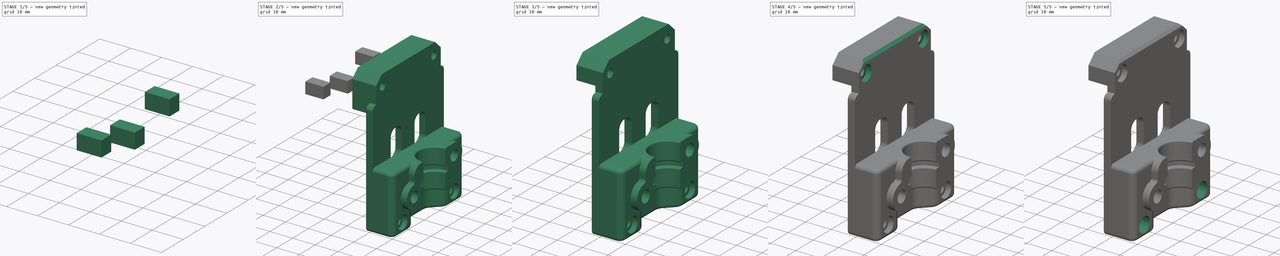
[diagram: build sequence overview — one tinted view per stage of 5, left to right]
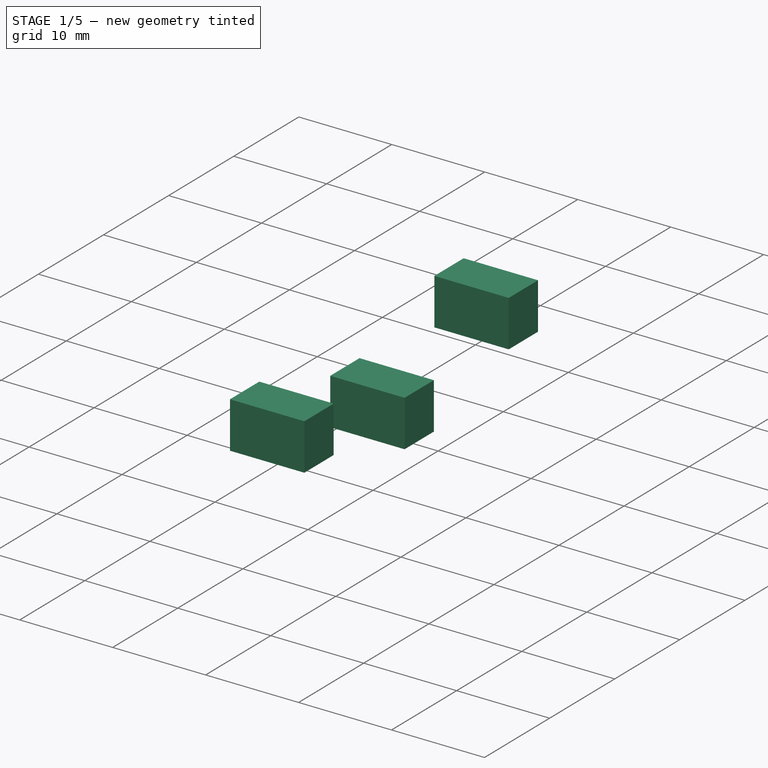
[diagram: stage 1 of 5 — iso view after this stage's code; geometry added in this stage tinted green]
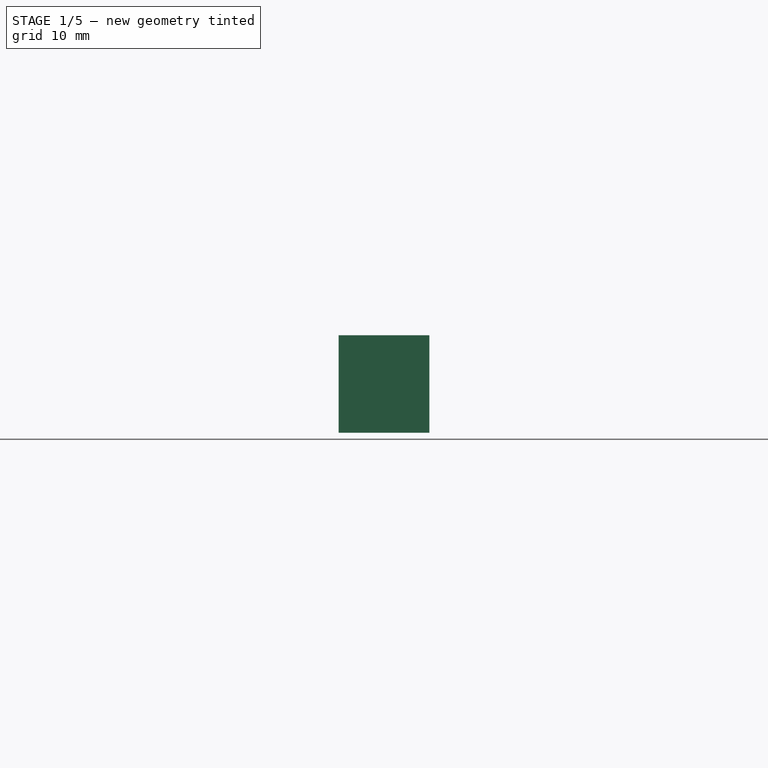
[diagram: stage 1 of 5 — front view after this stage's code; geometry added in this stage tinted green]
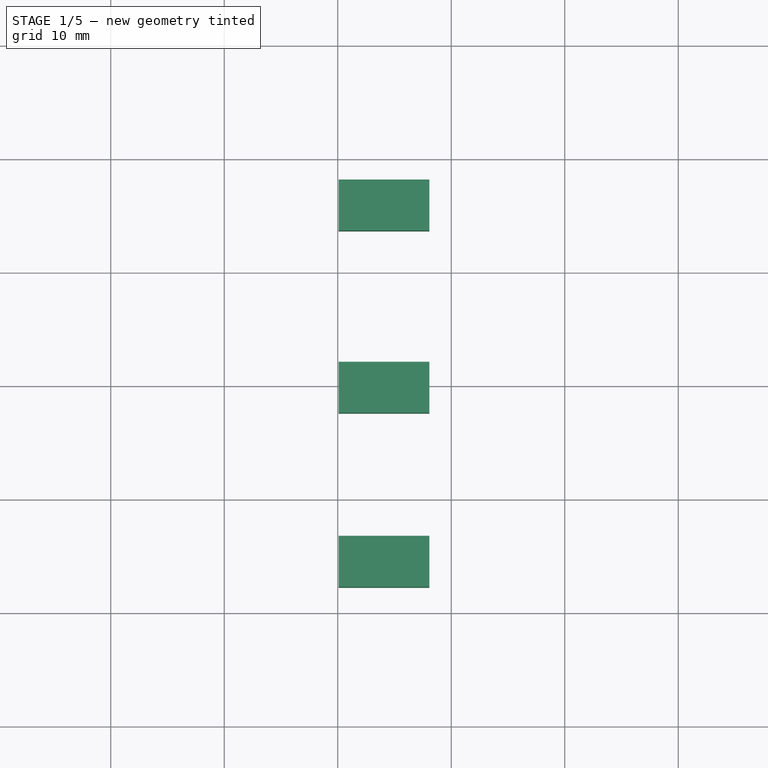
[diagram: stage 1 of 5 — top view after this stage's code; geometry added in this stage tinted green]
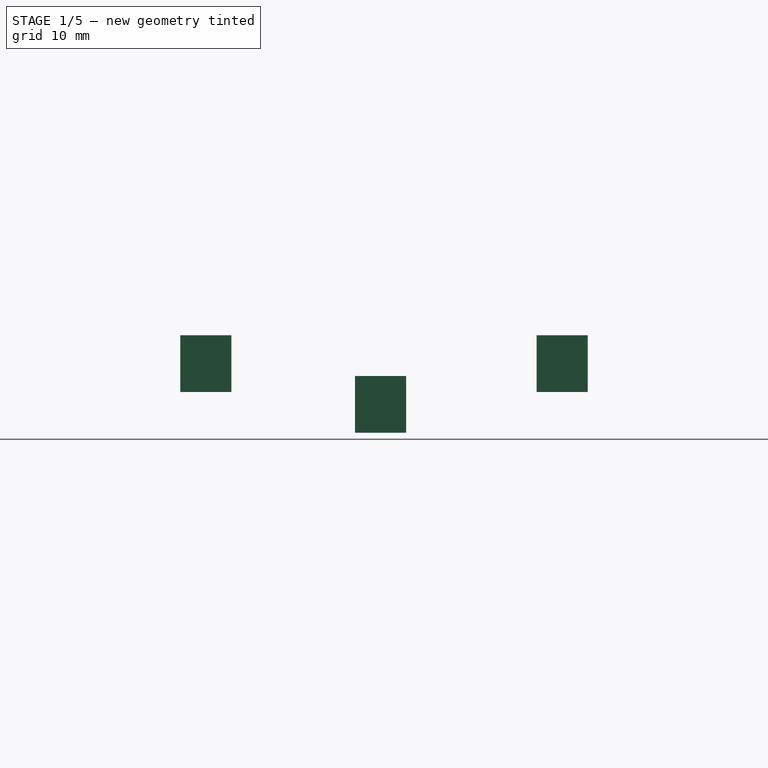
[diagram: stage 1 of 5 — right view after this stage's code; geometry added in this stage tinted green]
FCSTD DOCUMENT  (FreeCAD 1.0R39109 (Git))
Label: dragknife_sc_sbbackplate
License: All rights reserved
LicenseURL: https://en.wikipedia.org/wiki/All_rights_reserved
objects: Part::Feature×8, Sketcher::SketchObject×6, App::Part×3, PartDesign::Pocket×3, Part::Box×3, Part::FeaturePython×3, PartDesign::FeatureBase×2, PartDesign::Pad×2, PartDesign::Body×2, Part::Cut×2, Part::MultiFuse×1, Part::Plane×1, PartDesign::Hole×1, PartDesign::Chamfer×1, App::DocumentObjectGroup×1
note: 57 computed .brp shape members not serialized (recipe doc carries the construction recipe); baked Part::Feature solids carry a one-line shape summary decoded from their .brp

FEATURE [Part::Box] Box  label="Cube"
  AttacherType = Attacher::AttachEngine3D
  Height = 5
  Length = 8
  Placement = pos=(-29.926,-17.8,45) rot=(0,0,1;0rad)
  Width = 4.5
FEATURE [Part::Box] Box001  label="Cube001"
  AttacherType = Attacher::AttachEngine3D
  Height = 5
  Length = 8
  Placement = pos=(-29.926,13.6,45) rot=(0,0,1;0rad)
  Width = 4.5
FEATURE [Part::Box] Box002  label="Cube002"
  AttacherType = Attacher::AttachEngine3D
  Height = 5
  Length = 8
  Placement = pos=(-29.926,-2.4,41.4) rot=(0,0,1;0rad)
  Width = 4.5
FEATURE [Part::MultiFuse] Fusion
  Shapes = -> [Box,Box001,Box002]
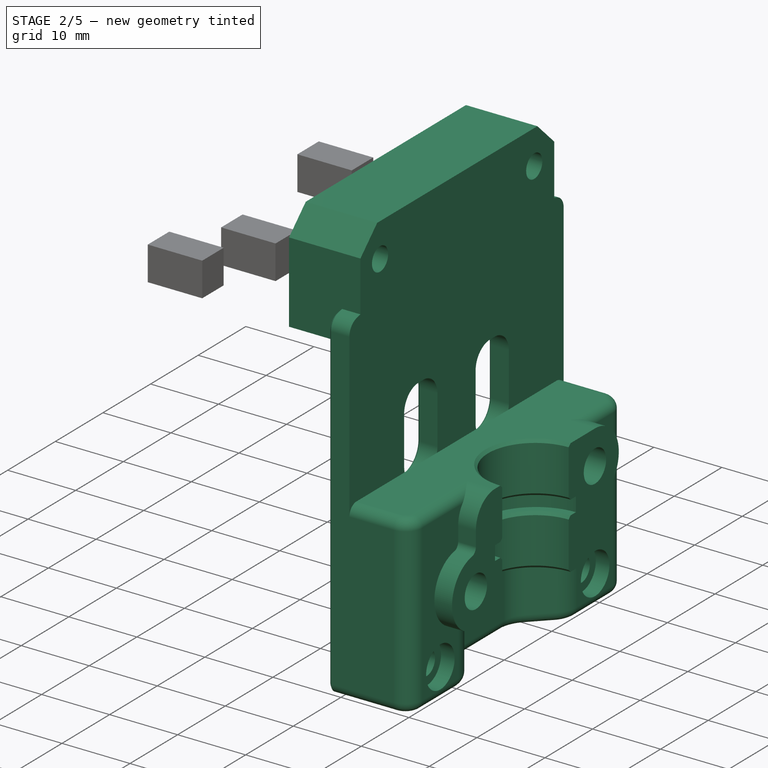
[diagram: stage 2 of 5 — iso view after this stage's code; geometry added in this stage tinted green]
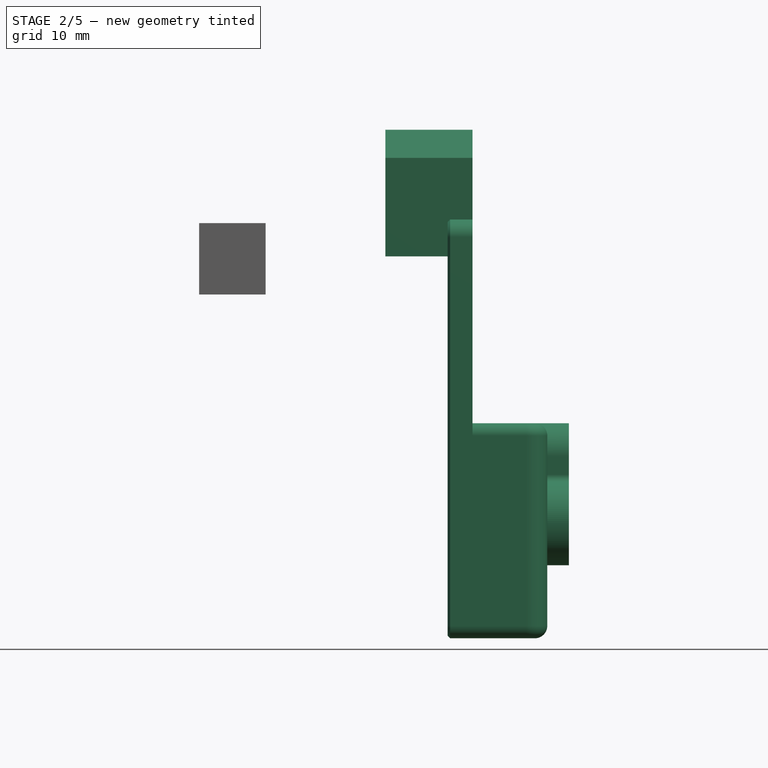
[diagram: stage 2 of 5 — front view after this stage's code; geometry added in this stage tinted green]
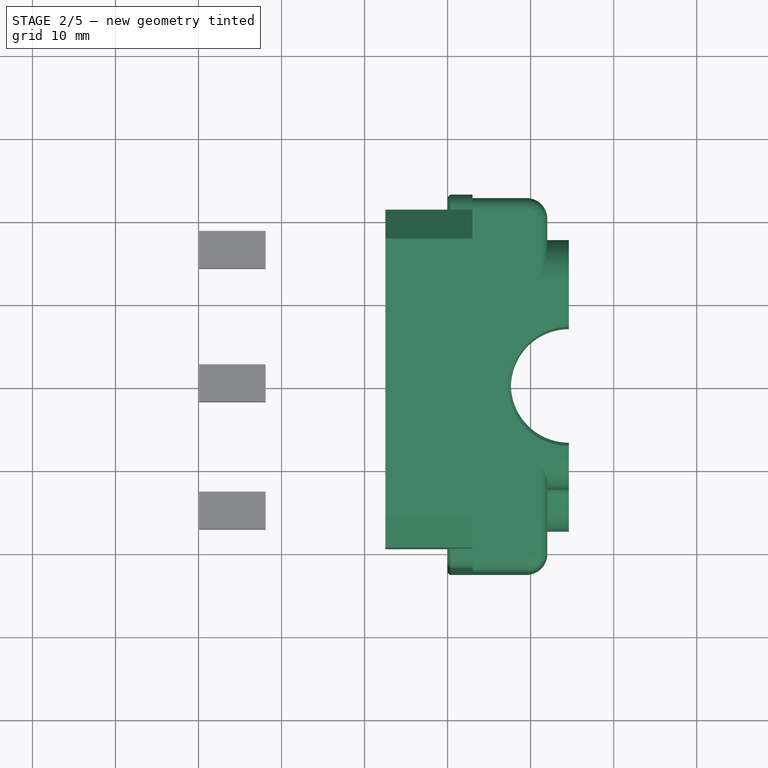
[diagram: stage 2 of 5 — top view after this stage's code; geometry added in this stage tinted green]
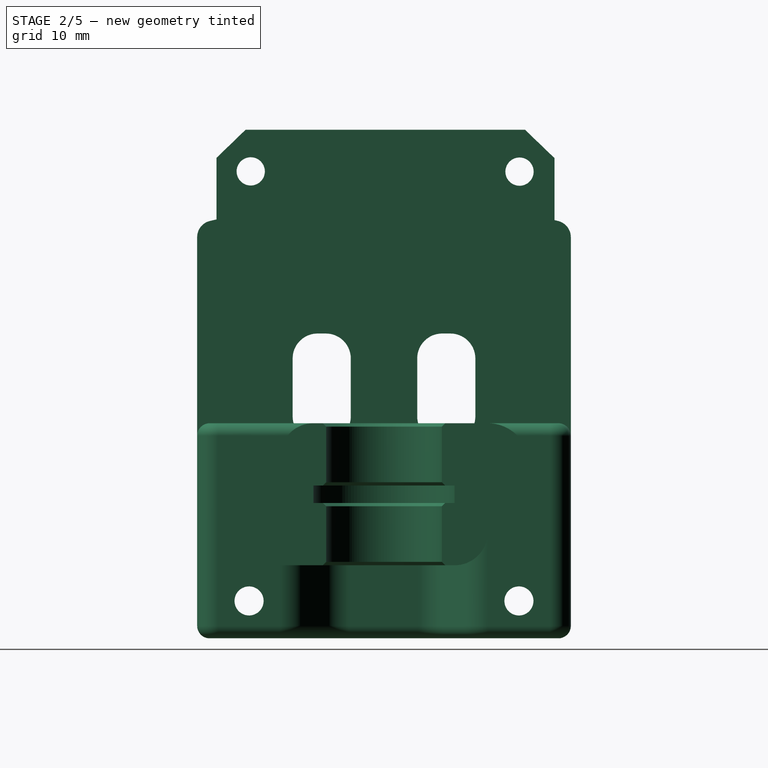
[diagram: stage 2 of 5 — right view after this stage's code; geometry added in this stage tinted green]
FEATURE [Part::Feature] Part__Feature005  label="Drag Knife"
  Placement = pos=(50.12,-8e-15,-15) rot=(0,0,1;0rad)
  shape: bbox 16.6 x 16.6 x 53.2 mm, 38 faces (baked)
FEATURE [Part::Feature] Part__Feature006  label="Drag Knife Slider Front"
  Placement = pos=(50.12,-7.1e-15,8.8) rot=(0,0,1;0rad)
  shape: bbox 9 x 35 x 17.1 mm, 83 faces (baked)
FEATURE [Part::Feature] Part__Feature007  label="Knob"
  Placement = pos=(50.12,-8e-15,27.2) rot=(1,0,0;1.5708rad)
  shape: bbox 19 x 19 x 14 mm, 103 faces (baked)
FEATURE [Part::Feature] Part__Feature008  label="M3x8 SHCS"
  Placement = pos=(14.12,-12.5,13.8) rot=(0.000598,-1,-0.000598;1.5708rad)
  shape: bbox 11 x 5.5 x 5.5 mm, 28 faces (baked)
FEATURE [Part::Feature] Part__Feature009  label="M3x8 SHCS001"
  Placement = pos=(14.12,12.5,20.9) rot=(0.000598,-1,-0.000598;1.5708rad)
  shape: bbox 11 x 5.5 x 5.5 mm, 28 faces (baked)
FEATURE [App::Part] Drag_Knife_Common  label="Drag Knife Common"
  Group = -> [Part__Feature005,Part__Feature006,Part__Feature007,Part__Feature008,Part__Feature009]
  Origin = -> Origin001
  Placement = pos=(-57.3,0,0) rot=(0,0,1;0rad)
FEATURE [Part::Feature] Part__Feature020  label="Body"
  Placement = pos=(50,-1.5,-77.05) rot=(0.57735,0.57735,-0.57735;4.18879rad)
  shape: bbox 27.58 x 54.7 x 74.12 mm, 398 faces (baked)
  expr: .Placement.Base.x = 50 mm
FEATURE [Part::Feature] Part__Feature021  label="Drag Knife Baseplate Tap001"
  Placement = pos=(-21.9,57.65,0.2) rot=(0,0,1;0rad)
  shape: bbox 14.61 x 45.01 x 50.89 mm, 205 faces (baked)
FEATURE [PartDesign::FeatureBase] BaseFeature
  BaseFeature = -> Part__Feature021
  Suppressed = false
FEATURE [Sketcher::SketchObject] Sketch
  ArcFitTolerance = 1e-06
  AttachmentSupport = -> [BaseFeature]
  ExternalGeometry = -> [BaseFeature]
  FullyConstrained = false
  MakeInternals = false
  MapMode = 5
  Placement = pos=(3,0,0) rot=(0.57735,0.57735,0.57735;2.0944rad)
  sketch-geometry (8):
    g0: LineSegment StartX=-20.1792 StartY=57.8576 StartZ=0 EndX=-20.1792 EndY=50.44 EndZ=0
    g1: LineSegment StartX=-20.1792 StartY=57.8576 StartZ=0 EndX=-16.6615 EndY=61.2541 EndZ=0
    g2: LineSegment StartX=-16.6615 StartY=61.2541 StartZ=0 EndX=16.974 EndY=61.2541 EndZ=0
    g3: LineSegment StartX=16.974 StartY=61.2541 StartZ=0 EndX=20.5273 EndY=57.8413 EndZ=0
    g4: LineSegment StartX=20.5273 StartY=57.8413 StartZ=0 EndX=20.5273 EndY=50.3643 EndZ=0
    g5: LineSegment StartX=-20.1792 StartY=50.44 StartZ=0 EndX=-20.1792 EndY=45.9912 EndZ=0
    g6: LineSegment StartX=-20.1792 StartY=45.9912 StartZ=0 EndX=20.5273 EndY=45.9912 EndZ=0
    g7: LineSegment StartX=20.5273 StartY=50.3643 StartZ=0 EndX=20.5273 EndY=45.9912 EndZ=0
  constraints (16):
    c: PointOnObject(g0,g-3)
    c: Vertical(g0)
    c: Coincident(g1,g0)
    c: Coincident(g2,g1)
    c: Horizontal(g2)
    c: Coincident(g3,g2)
    c: Coincident(g4,g3)
    c: PointOnObject(g4,g-10)
    c: Vertical(g4)
    c: Coincident(g5,g0)
    c: Vertical(g5)
    c: Coincident(g6,g5)
    c: Horizontal(g6)
    c: Coincident(g7,g4)
    c: Coincident(g7,g6)
    c: Vertical(g7)
FEATURE [PartDesign::Pad] Pad
  BaseFeature = -> BaseFeature
  Direction = (1,0,0)
  Length = 10.5
  Length2 = 10
  Profile = -> Sketch
  ReferenceAxis = -> Sketch [N_Axis]
  Refine = true
  Reversed = true
  Suppressed = false
  Type = 0
FEATURE [Sketcher::SketchObject] Sketch001
  ArcFitTolerance = 1e-06
  AttachmentSupport = -> [Pad]
  FullyConstrained = false
  MakeInternals = false
  MapMode = 5
  Placement = pos=(-7.5,0,0) rot=(0.57735,-0.57735,-0.57735;2.0944rad)
  sketch-geometry (2):
    g0: Circle CenterX=-16.3214 CenterY=56.2024 CenterZ=0 NormalX=0 NormalY=0 NormalZ=1 AngleXU=0 Radius=1.7
    g1: Circle CenterX=16.0508 CenterY=56.233 CenterZ=0 NormalX=0 NormalY=0 NormalZ=1 AngleXU=0 Radius=1.7
  constraints (2):
    c: Diameter(g0) = 3.4
    c: Diameter(g1) = 3.4
FEATURE [PartDesign::Pocket] Pocket
  BaseFeature = -> Pad
  Direction = (1,0,0)
  Length = 15
  Length2 = 5
  Profile = -> Sketch001
  ReferenceAxis = -> Sketch001 [N_Axis]
  Refine = true
  Suppressed = false
  Type = 0
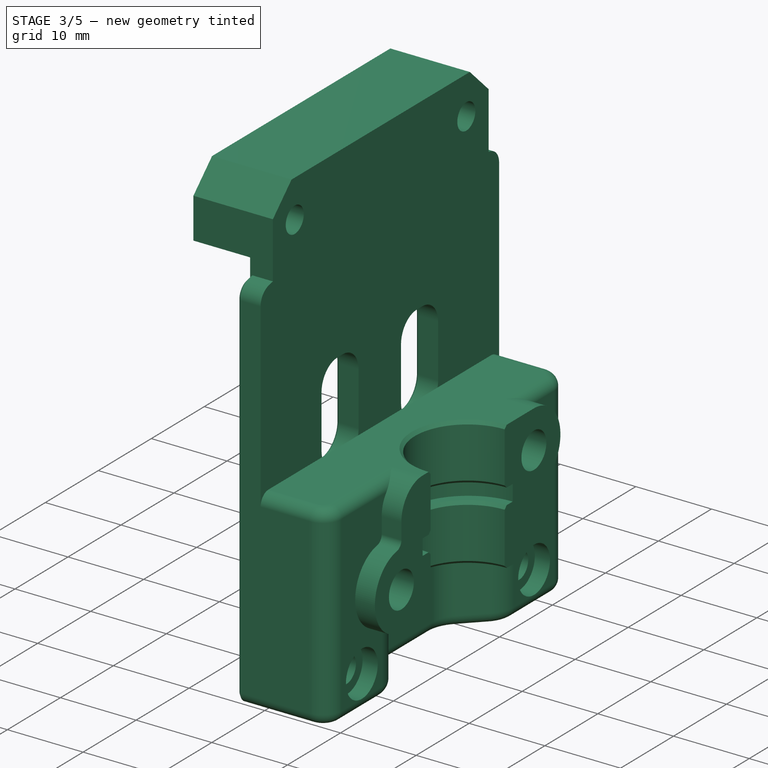
[diagram: stage 3 of 5 — iso view after this stage's code; geometry added in this stage tinted green]
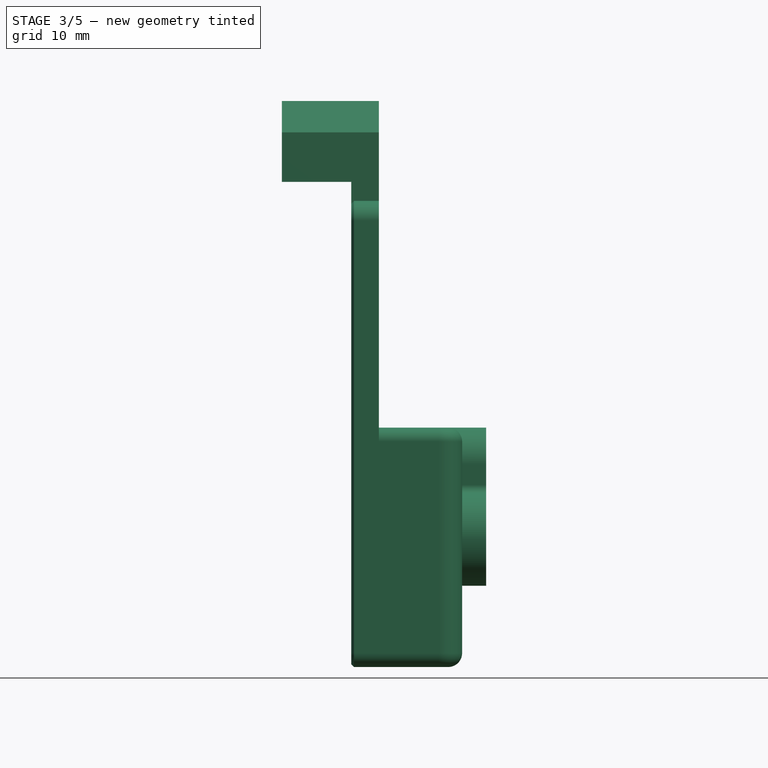
[diagram: stage 3 of 5 — front view after this stage's code; geometry added in this stage tinted green]
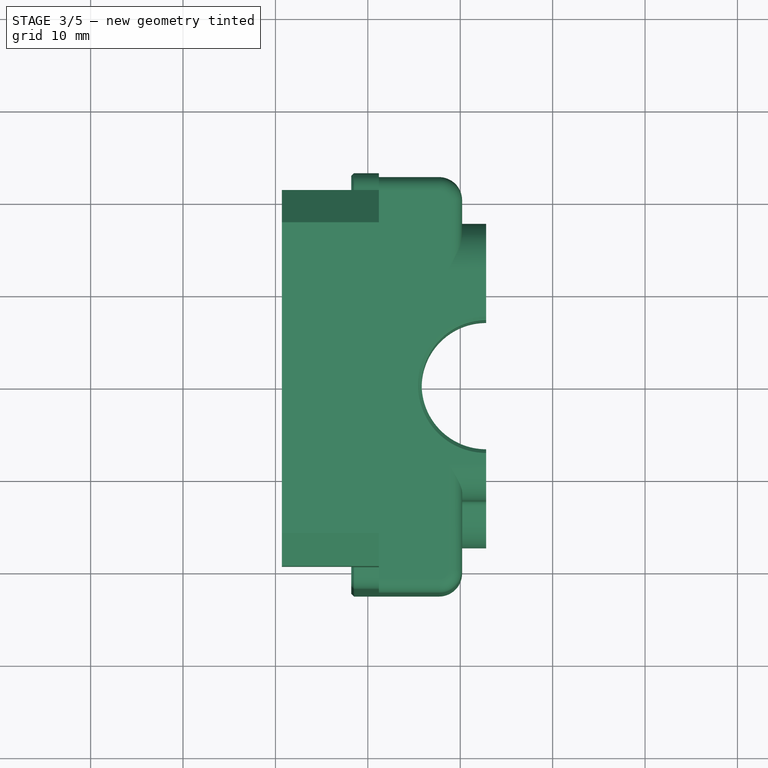
[diagram: stage 3 of 5 — top view after this stage's code; geometry added in this stage tinted green]
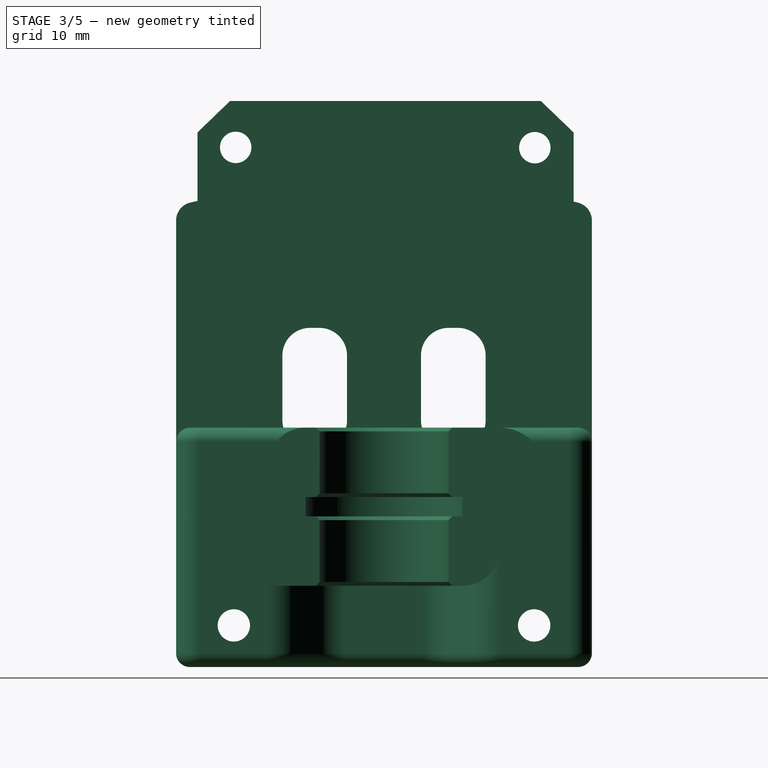
[diagram: stage 3 of 5 — right view after this stage's code; geometry added in this stage tinted green]
FEATURE [PartDesign::Body] Body  label="Body001"
  AllowCompound = false
  BaseFeature = -> Part__Feature021
  Group = -> [BaseFeature,Sketch,Pad,Sketch001,Pocket]
  Origin = -> Origin005
  Placement = pos=(-21.8,0,0) rot=(0,0,1;0rad)
  Tip = -> Pocket
FEATURE [Part::Feature] Part__Feature022  label="Body002"
  Placement = pos=(50,-1.5,-77.05) rot=(0.57735,0.57735,-0.57735;4.18879rad)
  shape: bbox 27.58 x 54.7 x 74.12 mm, 398 faces (baked)
  expr: .Placement.Base.x = 50 mm
FEATURE [Part::Cut] Cut
  Base = -> Body
  Tool = -> Part__Feature022
FEATURE [Part::Cut] Cut001
  Base = -> Cut
  Tool = -> Fusion
FEATURE [PartDesign::FeatureBase] BaseFeature001
  BaseFeature = -> Cut001
  Suppressed = false
FEATURE [Sketcher::SketchObject] Sketch002
  ArcFitTolerance = 1e-06
  AttachmentSupport = -> [BaseFeature001]
  ExternalGeometry = -> [BaseFeature001]
  FullyConstrained = true
  MakeInternals = false
  MapMode = 5
  Placement = pos=(0,20.5273,0) rot=(0,0.707107,0.707107;3.14159rad)
  sketch-geometry (4):
    g0: LineSegment StartX=29.3 StartY=52.5024 StartZ=0 EndX=21.8 EndY=52.5024 EndZ=0
    g1: LineSegment StartX=21.8 StartY=52.5024 StartZ=0 EndX=21.8 EndY=44.9912 EndZ=0
    g2: LineSegment StartX=21.8 StartY=44.9912 StartZ=0 EndX=29.3 EndY=44.9912 EndZ=0
    g3: LineSegment StartX=29.3 StartY=44.9912 StartZ=0 EndX=29.3 EndY=52.5024 EndZ=0
  constraints (12):
    c: Coincident(g0,g1)
    c: Coincident(g2,g3)
    c: Horizontal(g0)
    c: Horizontal(g2)
    c: Vertical(g1)
    c: Vertical(g3)
    c: Coincident(g3,g0)
    c: PointOnObject(g0,g-7)
    c: DistanceY(g0,g-3) = 2
    c: Coincident(g1,g2)
    c: PointOnObject(g1,g-5)
    c: DistanceY(g1,g-6) = 1
FEATURE [PartDesign::Pocket] Pocket001
  BaseFeature = -> BaseFeature001
  Direction = (0,-1,2e-16)
  Length = 50
  Length2 = 5
  Profile = -> Sketch002
  ReferenceAxis = -> Sketch002 [N_Axis]
  Refine = true
  Suppressed = false
  Type = 0
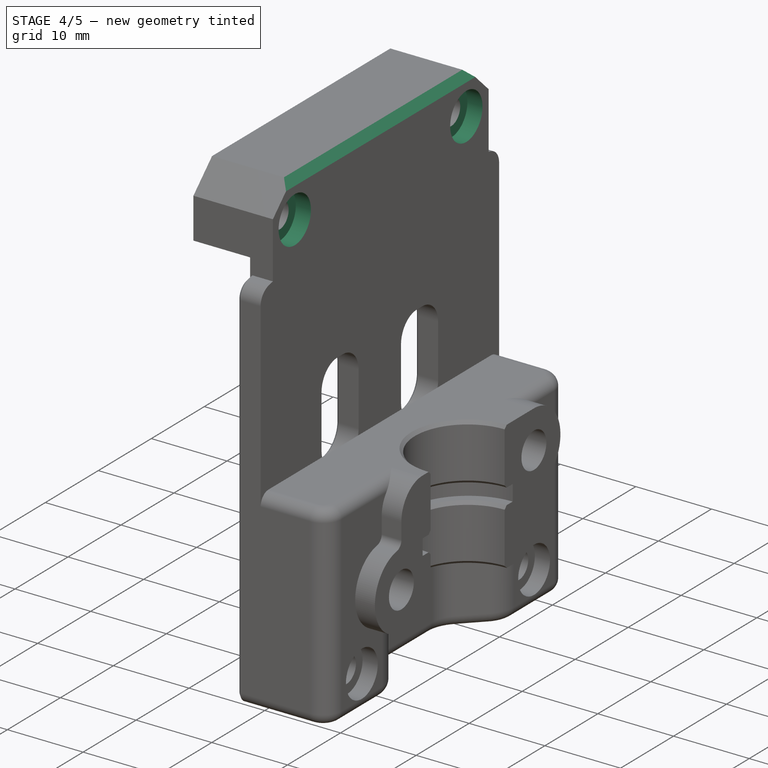
[diagram: stage 4 of 5 — iso view after this stage's code; geometry added in this stage tinted green]
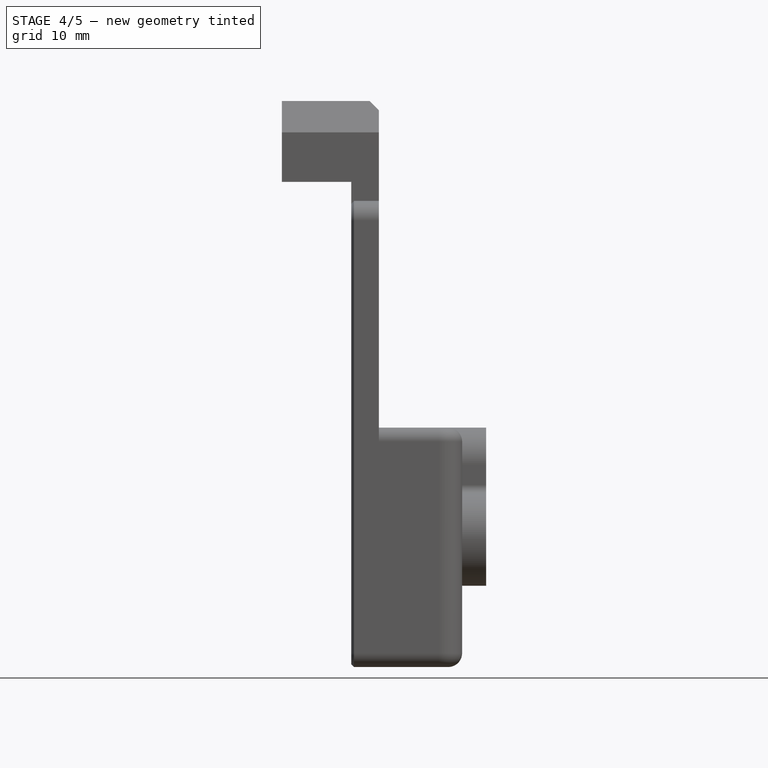
[diagram: stage 4 of 5 — front view after this stage's code; geometry added in this stage tinted green]
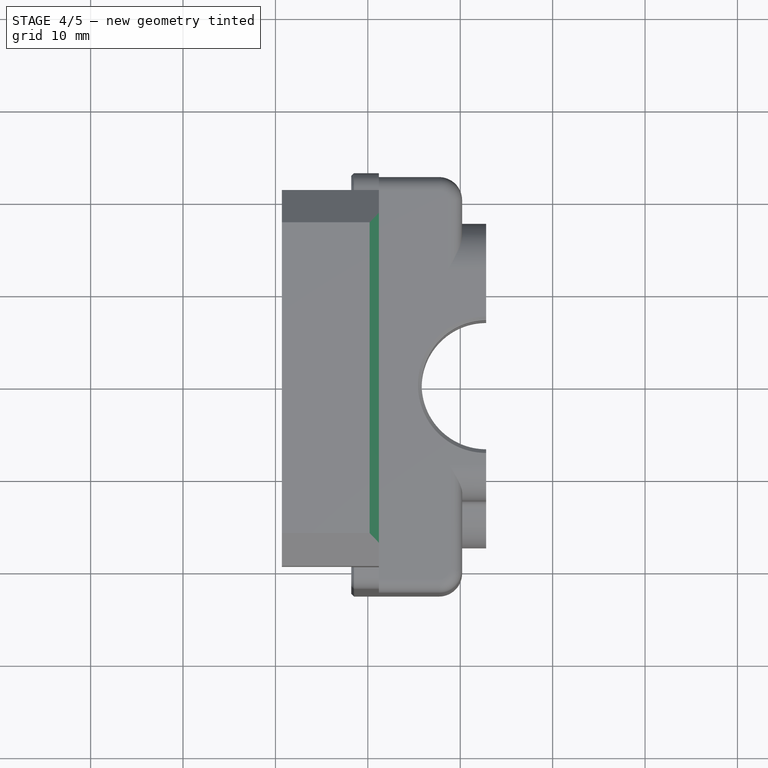
[diagram: stage 4 of 5 — top view after this stage's code; geometry added in this stage tinted green]
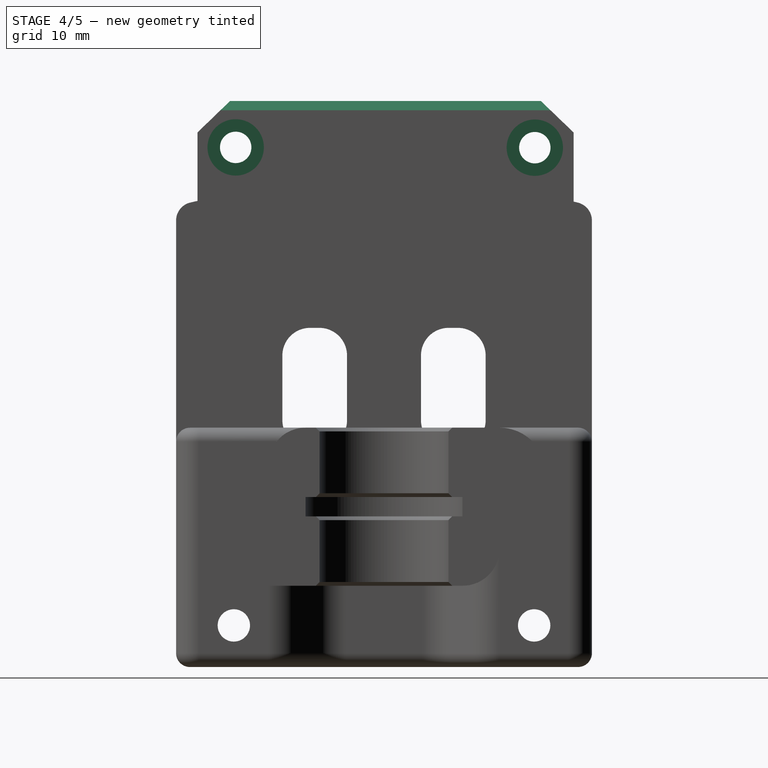
[diagram: stage 4 of 5 — right view after this stage's code; geometry added in this stage tinted green]
FEATURE [Sketcher::SketchObject] Sketch003
  ArcFitTolerance = 1e-06
  AttachmentSupport = -> [Pocket001]
  FullyConstrained = false
  MakeInternals = false
  MapMode = 5
  Placement = pos=(-21.8,0,0) rot=(0.57735,-0.57735,-0.57735;2.0944rad)
  sketch-geometry (4):
    g0: LineSegment StartX=-17.1861 StartY=47.7492 StartZ=0 EndX=-17.1861 EndY=43.241 EndZ=0
    g1: LineSegment StartX=-17.1861 StartY=43.241 StartZ=0 EndX=18.1859 EndY=43.241 EndZ=0
    g2: LineSegment StartX=18.1859 StartY=43.241 StartZ=0 EndX=18.1859 EndY=47.7492 EndZ=0
    g3: LineSegment StartX=18.1859 StartY=47.7492 StartZ=0 EndX=-17.1861 EndY=47.7492 EndZ=0
  constraints (8):
    c: Coincident(g0,g1)
    c: Coincident(g1,g2)
    c: Coincident(g2,g3)
    c: Coincident(g3,g0)
    c: Vertical(g0)
    c: Vertical(g2)
    c: Horizontal(g1)
    c: Horizontal(g3)
FEATURE [PartDesign::Pad] Pad001
  BaseFeature = -> Pocket001
  Direction = (-1,0,0)
  Length = 1
  Length2 = 10
  Profile = -> Sketch003
  ReferenceAxis = -> Sketch003 [N_Axis]
  Refine = true
  Reversed = true
  Suppressed = false
  Type = 0
FEATURE [Part::Plane] Plane
  AttacherType = Attacher::AttachEngine3D
  Length = 100
  Placement = pos=(-21.8,-49.991,-22.5923) rot=(0,-1,0;1.5708rad)
  Width = 100
FEATURE [Sketcher::SketchObject] Sketch004
  ArcFitTolerance = 1e-06
  AttachmentSupport = -> [Pad001]
  ExternalGeometry = -> [Pad001]
  FullyConstrained = true
  MakeInternals = false
  MapMode = 5
  Placement = pos=(-18.8,0,0) rot=(0.57735,0.57735,0.57735;2.0944rad)
  sketch-geometry (2):
    g0: Circle CenterX=-16.0508 CenterY=56.233 CenterZ=0 NormalX=0 NormalY=0 NormalZ=1 AngleXU=0 Radius=1.7
    g1: Circle CenterX=16.3214 CenterY=56.2024 CenterZ=0 NormalX=0 NormalY=0 NormalZ=1 AngleXU=0 Radius=1.7
  constraints (4):
    c: Coincident(g0,g-3)
    c: Equal(g0,g-3)
    c: Coincident(g1,g-4)
    c: Equal(g1,g-4)
FEATURE [PartDesign::Hole] Hole
  BaseFeature = -> Pad001
  CustomThreadClearance = 0
  Depth = 25
  DepthType = 0
  Diameter = 3.4
  DrillForDepth = false
  DrillPoint = 1
  DrillPointAngle = 118
  HoleCutCountersinkAngle = 90
  HoleCutCustomValues = false
  HoleCutDepth = 2
  HoleCutDiameter = 6.1
  HoleCutType = 1
  ModelThread = false
  Profile = -> Sketch004
  Refine = true
  Suppressed = false
  Tapered = false
  TaperedAngle = 90
  ThreadClass = 0
  ThreadDepth = 25
  ThreadDepthType = 0
  ThreadDirection = 0
  ThreadFit = 0
  ThreadSize = 9
  ThreadType = 1
  Threaded = false
  UseCustomThreadClearance = false
FEATURE [PartDesign::Chamfer] Chamfer
  Angle = 45
  Base = -> Hole [Edge35]
  BaseFeature = -> Hole
  ChamferType = 0
  FlipDirection = false
  Refine = true
  Size = 1
  Size2 = 1
  SupportTransform = false
  Suppressed = false
  UseAllEdges = false
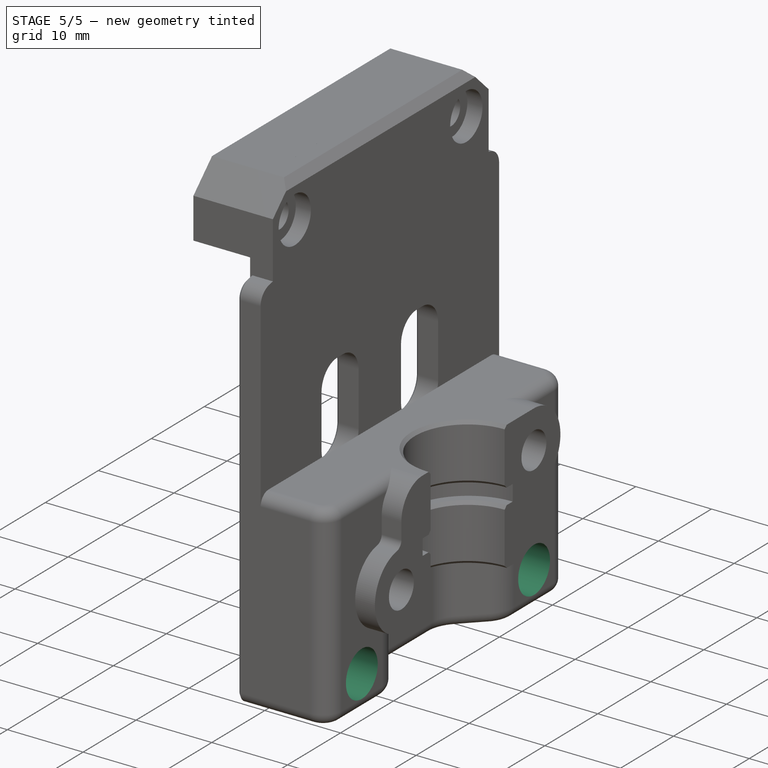
[diagram: stage 5 of 5 — iso view after this stage's code; geometry added in this stage tinted green]
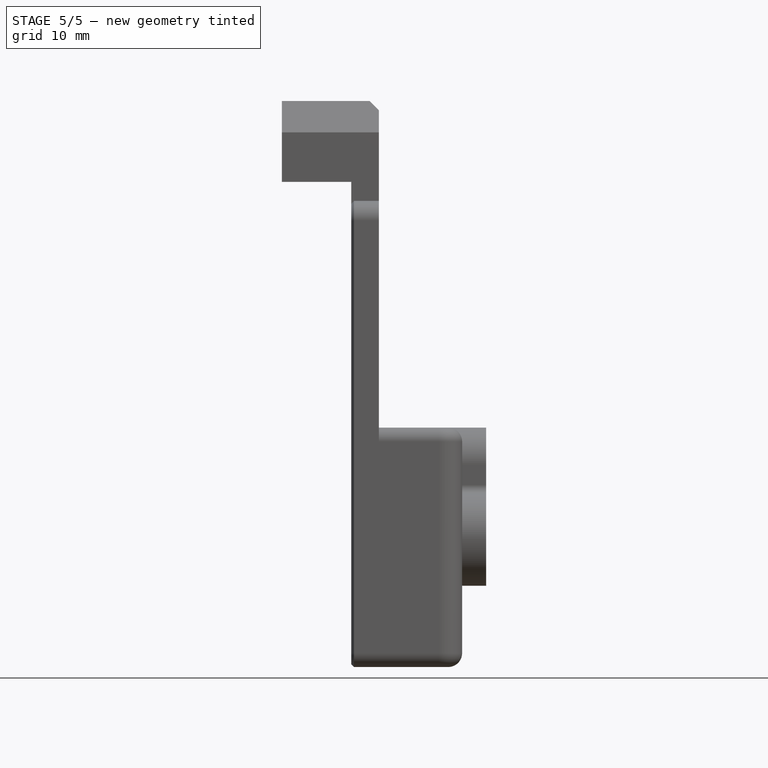
[diagram: stage 5 of 5 — front view after this stage's code; geometry added in this stage tinted green]
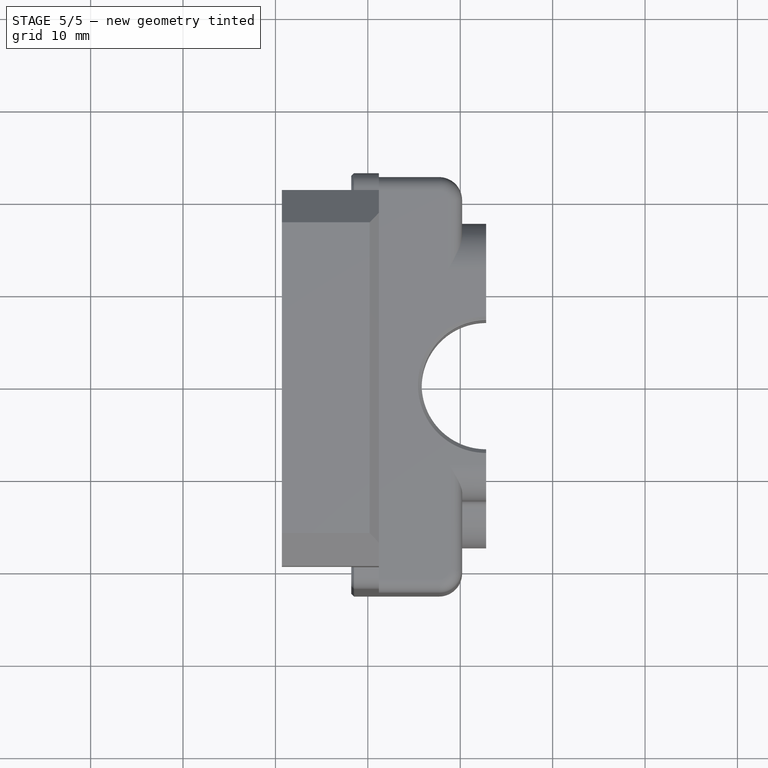
[diagram: stage 5 of 5 — top view after this stage's code; geometry added in this stage tinted green]
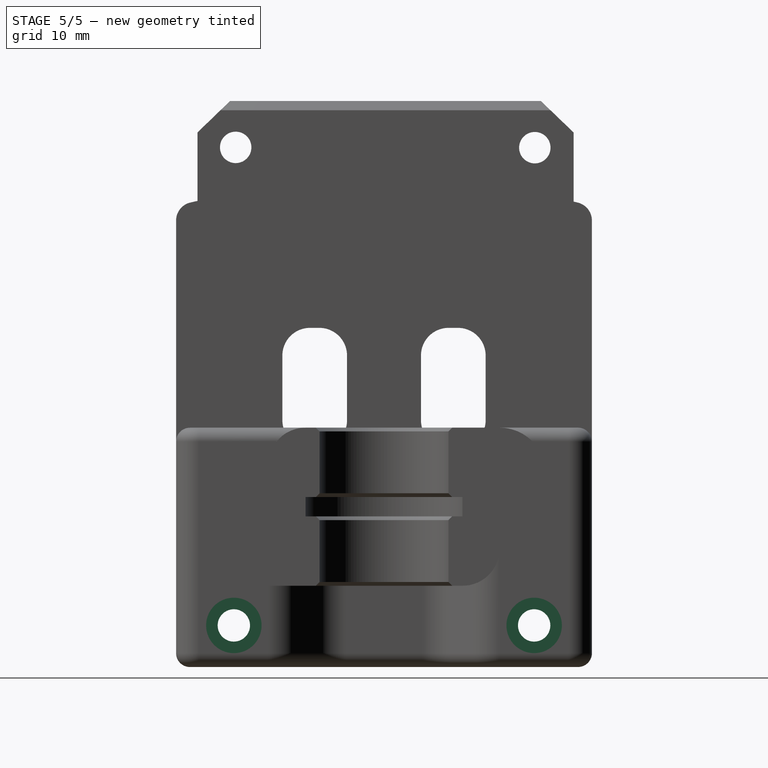
[diagram: stage 5 of 5 — right view after this stage's code; geometry added in this stage tinted green]
FEATURE [Sketcher::SketchObject] Sketch005
  ArcFitTolerance = 1e-06
  AttachmentSupport = -> [Chamfer]
  ExternalGeometry = -> [Chamfer]
  FullyConstrained = true
  MakeInternals = false
  MapMode = 5
  Placement = pos=(-11.8,0,0) rot=(0.57735,0.57735,0.57735;2.0944rad)
  sketch-geometry (2):
    g0: Circle CenterX=-16.25 CenterY=4.5004 CenterZ=0 NormalX=0 NormalY=0 NormalZ=1 AngleXU=0 Radius=3
    g1: Circle CenterX=16.25 CenterY=4.5004 CenterZ=0 NormalX=0 NormalY=0 NormalZ=1 AngleXU=0 Radius=3
  constraints (4):
    c: Coincident(g0,g-4)
    c: PointOnObject(g-4,g0)
    c: Coincident(g1,g-6)
    c: PointOnObject(g-6,g1)
FEATURE [PartDesign::Pocket] Pocket002
  BaseFeature = -> Chamfer
  Direction = (-1,0,0)
  Length = 5
  Length2 = 5
  Profile = -> Sketch005
  ReferenceAxis = -> Sketch005 [N_Axis]
  Refine = true
  Suppressed = false
  Type = 0
FEATURE [PartDesign::Body] Body001  label="Body003"
  AllowCompound = false
  BaseFeature = -> Cut001
  Group = -> [BaseFeature001,Sketch002,Pocket001,Sketch003,Pad001,Sketch004,Hole,Chamfer,Sketch005,Pocket002]
  Origin = -> Origin006
  Tip = -> Pocket002
FEATURE [Part::FeaturePython] Slice  # WARN: FeaturePython — macro-defined, semantics opaque (R4)
  Base = -> Body001
  Mode = 1
  Tolerance = 0
  Tools = -> [Plane]
FEATURE [Part::FeaturePython] Slice_child0  label="Slice.0"  # WARN: FeaturePython — macro-defined, semantics opaque (R4)
  Base = -> Slice
  FilterType = 1
  Invert = false
  OverrideMaxVal = 0
  WindowFrom = 80
  WindowTo = 100
  items = 0
FEATURE [Part::FeaturePython] Slice_child1  label="Slice.1"  # WARN: FeaturePython — macro-defined, semantics opaque (R4)
  Base = -> Slice
  FilterType = 1
  Invert = false
  OverrideMaxVal = 0
  WindowFrom = 80
  WindowTo = 100
  items = 1
FEATURE [App::DocumentObjectGroup] GrExplode_Slice  label="Exploded Slice"
  Group = -> [Slice_child0,Slice_child1]
FEATURE [App::Part] Baseplate_Tap  label="Baseplate Tap"
  Group = -> [Drag_Knife_Common,Part__Feature020,GrExplode_Slice,Part__Feature021,Body,Box002,Cut001,Box,Box001,Part__Feature022,Cut,Body001,Plane,Slice,Slice_child1,Slice_child0,Fusion]
  Origin = -> Origin
  Placement = pos=(-3.54201,-57.5,-6.4e-14) rot=(0,0,1;0rad)
FEATURE [App::Part] Drag_Knife_Toolhead  label="Drag Knife Toolhead"
  Group = -> [Baseplate_Tap]
  Origin = -> Origin004
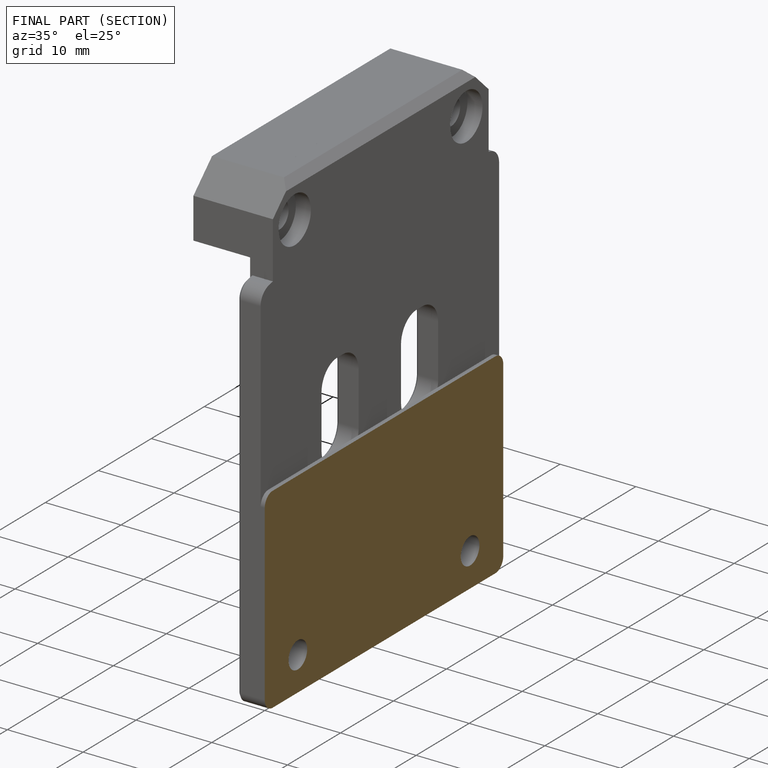
[diagram: finished part — half-section view (interior)]
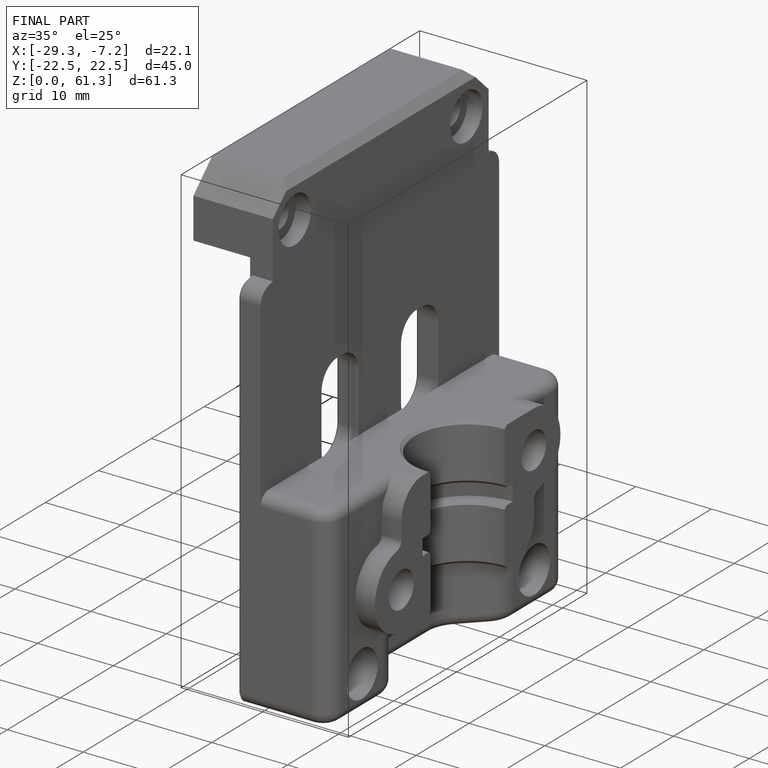
[diagram: finished part — iso view with bounding-box wireframe]
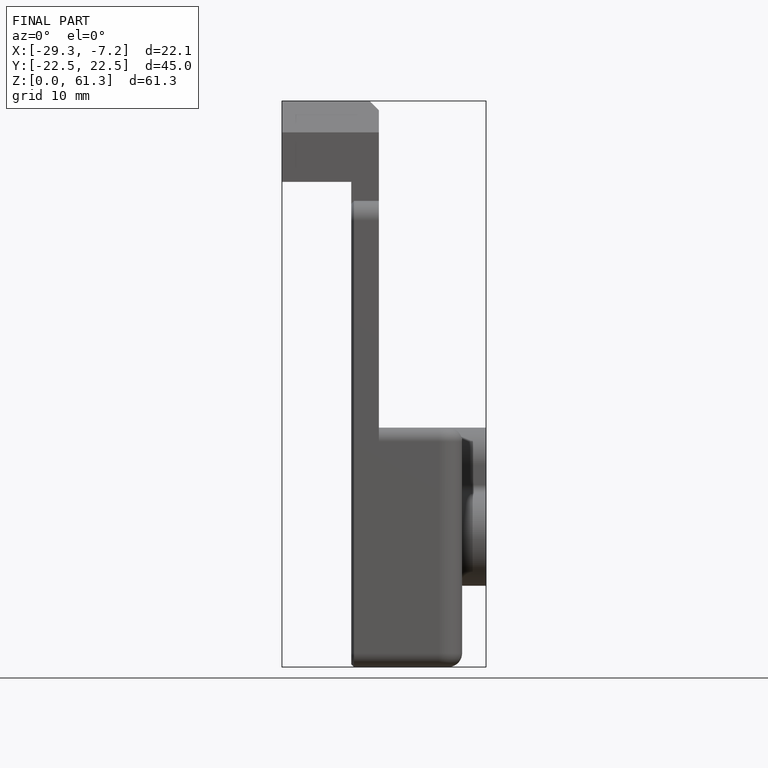
[diagram: finished part — front view with bounding-box wireframe]
